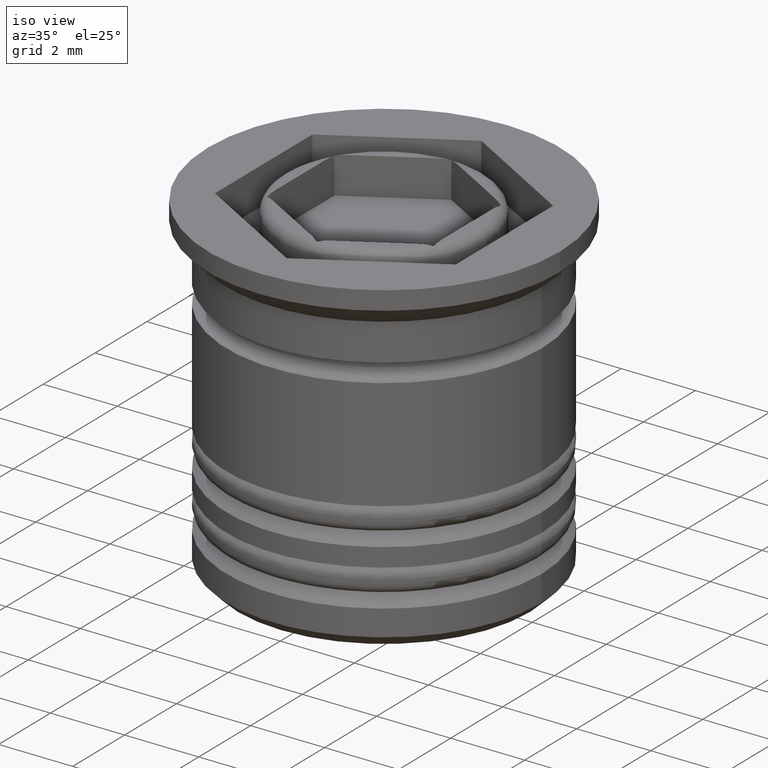
[diagram: clean part render]
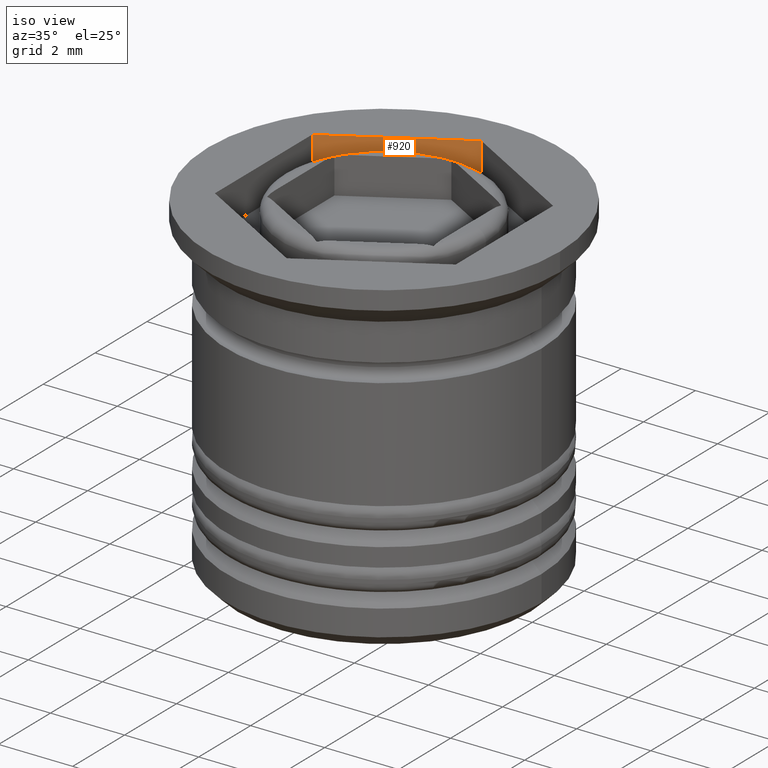
[diagram: same view with one face highlighted and labeled with its STEP entity id]
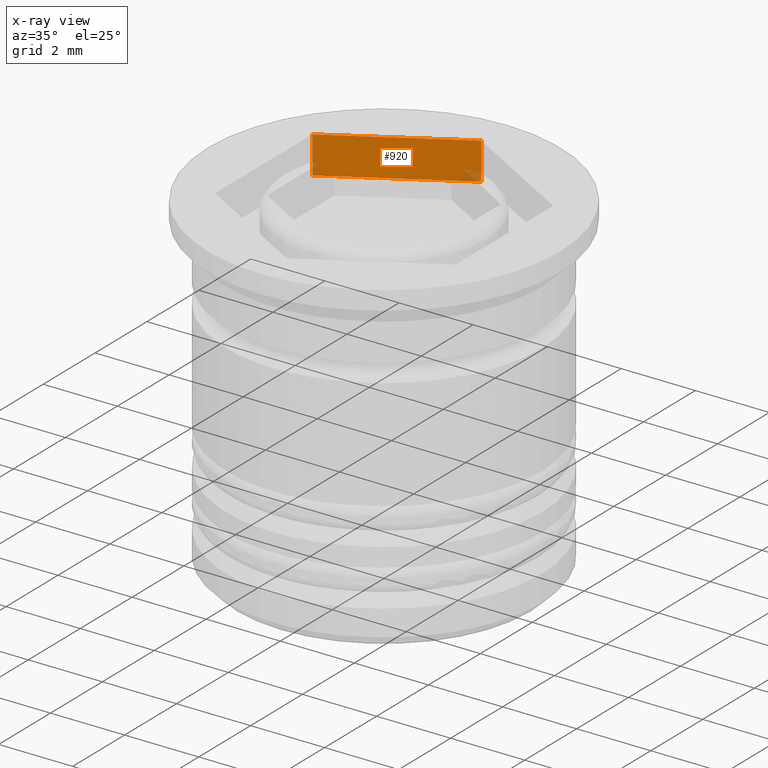
[diagram: x-ray of the same camera — body ghosted, the highlighted face saturated]
A machine part, iso view. The second image highlights one B-rep face of the part: STEP entity #920.
The next image is the same camera in x-ray: the body ghosted, the highlighted face saturated — about 4% of this face is hidden behind the body in this view.
In plain terms, the highlighted planar face has unit normal (-0.5, 0.866, 0).
Its self-contained STEP definition (entity closure, byte-faithful):
#12 = CARTESIAN_POINT ( 'NONE',  ( -3.250000000000000000, 1.876388374866282627, -1.000000000000000000 ) ) ;
#254 = VERTEX_POINT ( 'NONE', #1492 ) ;
#274 = LINE ( 'NONE', #906, #1491 ) ;
#292 = CARTESIAN_POINT ( 'NONE',  ( -3.250000000000000000, 1.876388374866282627, -1.000000000000000000 ) ) ;
#404 = FACE_OUTER_BOUND ( 'NONE', #1111, .T. ) ;
#673 = EDGE_CURVE ( 'NONE', #1327, #254, #274, .T. ) ;
#718 = ORIENTED_EDGE ( 'NONE', *, *, #797, .F. ) ;
#727 = LINE ( 'NONE', #1048, #1002 ) ;
#797 = EDGE_CURVE ( 'NONE', #1327, #1054, #1285, .T. ) ;
#814 = ORIENTED_EDGE ( 'NONE', *, *, #1587, .T. ) ;
#906 = CARTESIAN_POINT ( 'NONE',  ( 0.000000000000000000, 3.752776749732567474, -1.000000000000000000 ) ) ;
#920 = ADVANCED_FACE ( 'NONE', ( #404 ), #1642, .F. ) ;
#1000 = DIRECTION ( 'NONE',  ( -0.8660254037844384856, -0.5000000000000002220, 0.000000000000000000 ) ) ;
#1002 = VECTOR ( 'NONE', #1667, 1000.000000000000114 ) ;
#1043 = EDGE_CURVE ( 'NONE', #1054, #1750, #1710, .T. ) ;
#1048 = CARTESIAN_POINT ( 'NONE',  ( -1.625000000000000444, 2.814582562299424939, 0.000000000000000000 ) ) ;
#1054 = VERTEX_POINT ( 'NONE', #12 ) ;
#1111 = EDGE_LOOP ( 'NONE', ( #814, #1344, #718, #1374 ) ) ;
#1120 = CARTESIAN_POINT ( 'NONE',  ( -3.250000000000000000, 1.876388374866282627, 0.000000000000000000 ) ) ;
#1255 = AXIS2_PLACEMENT_3D ( 'NONE', #1336, #1812, #1507 ) ;
#1285 = LINE ( 'NONE', #1445, #2025 ) ;
#1327 = VERTEX_POINT ( 'NONE', #1588 ) ;
#1336 = CARTESIAN_POINT ( 'NONE',  ( -1.625000000000000444, 2.814582562299424939, -1.000000000000000000 ) ) ;
#1344 = ORIENTED_EDGE ( 'NONE', *, *, #1043, .F. ) ;
#1374 = ORIENTED_EDGE ( 'NONE', *, *, #673, .T. ) ;
#1411 = DIRECTION ( 'NONE',  ( -0.000000000000000000, -0.000000000000000000, 1.000000000000000000 ) ) ;
#1445 = CARTESIAN_POINT ( 'NONE',  ( -1.625000000000000444, 2.814582562299424939, -1.000000000000000000 ) ) ;
#1491 = VECTOR ( 'NONE', #1816, 1000.000000000000000 ) ;
#1492 = CARTESIAN_POINT ( 'NONE',  ( 0.000000000000000000, 3.752776749732567474, 0.000000000000000000 ) ) ;
#1507 = DIRECTION ( 'NONE',  ( -0.8660254037844384856, -0.5000000000000002220, 0.000000000000000000 ) ) ;
#1587 = EDGE_CURVE ( 'NONE', #254, #1750, #727, .T. ) ;
#1588 = CARTESIAN_POINT ( 'NONE',  ( 0.000000000000000000, 3.752776749732567474, -1.000000000000000000 ) ) ;
#1642 = PLANE ( 'NONE',  #1255 ) ;
#1667 = DIRECTION ( 'NONE',  ( -0.8660254037844384856, -0.5000000000000002220, 0.000000000000000000 ) ) ;
#1710 = LINE ( 'NONE', #292, #1765 ) ;
#1750 = VERTEX_POINT ( 'NONE', #1120 ) ;
#1765 = VECTOR ( 'NONE', #1411, 1000.000000000000000 ) ;
#1812 = DIRECTION ( 'NONE',  ( -0.5000000000000003331, 0.8660254037844385966, 0.000000000000000000 ) ) ;
#1816 = DIRECTION ( 'NONE',  ( -0.000000000000000000, -0.000000000000000000, 1.000000000000000000 ) ) ;
#2025 = VECTOR ( 'NONE', #1000, 1000.000000000000114 ) ;